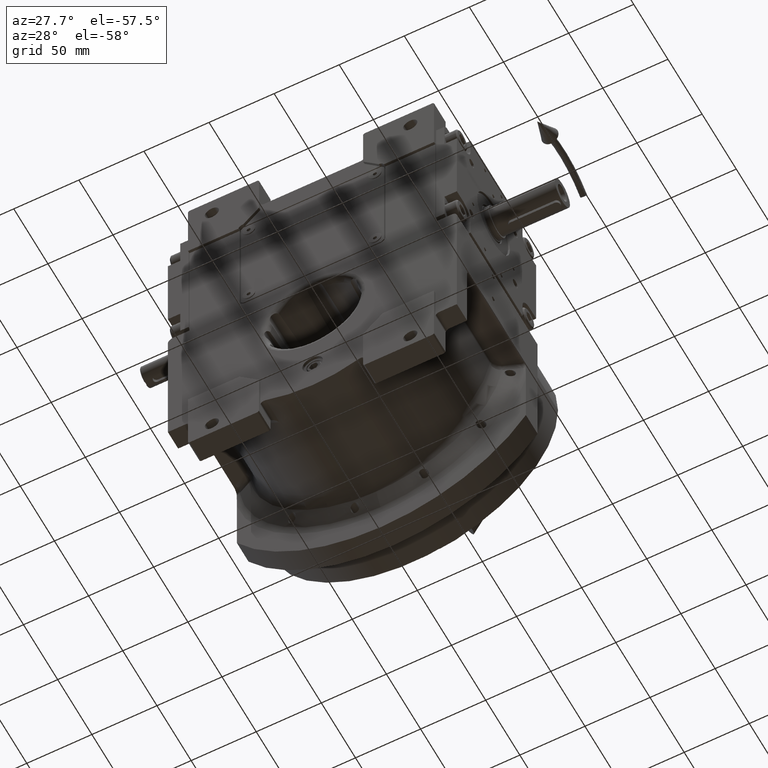
[diagram: clean part render]
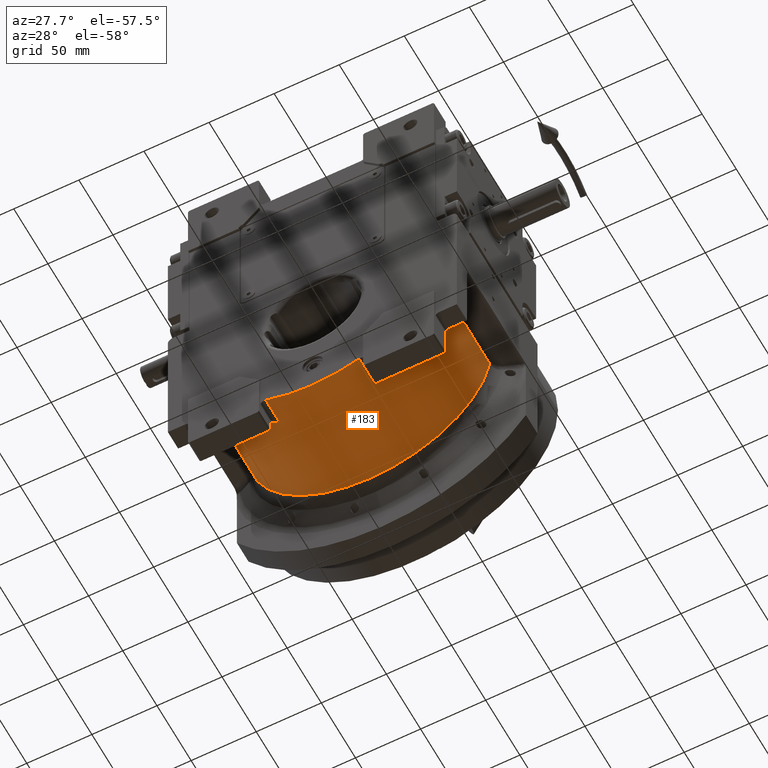
[diagram: same view with one face highlighted and labeled with its STEP entity id]
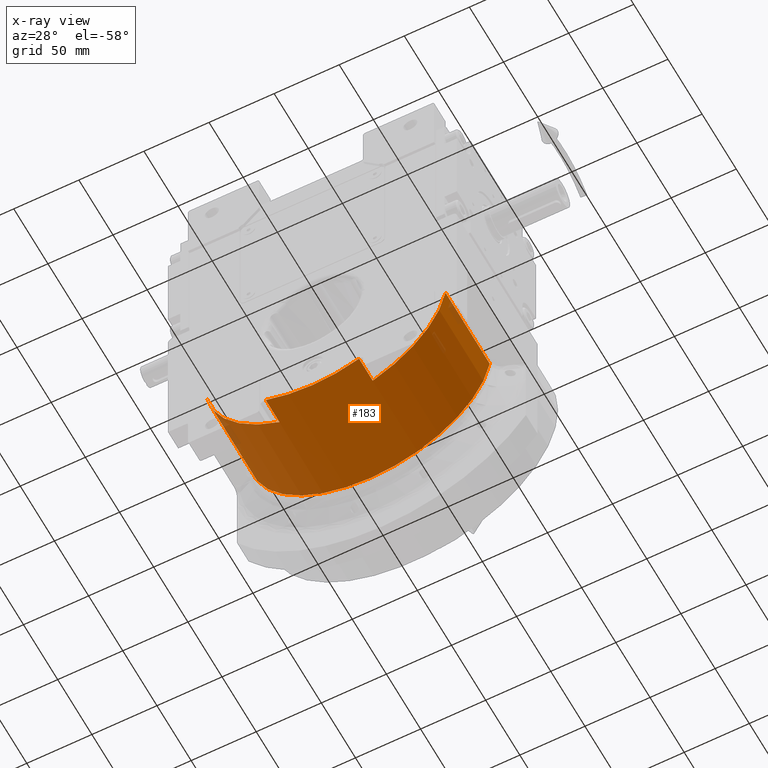
[diagram: x-ray of the same camera — body ghosted, the highlighted face saturated]
A machine part, auxiliary view. The second image highlights one B-rep face of the part: STEP entity #183.
The next image is the same camera in x-ray: the body ghosted, the highlighted face saturated — about 2% of this face is hidden behind the body in this view.
In plain terms, the highlighted cylindrical surface (partial cylindrical patch) has radius 93 mm, axis along (0, 1, 0).
Its self-contained STEP definition (entity closure, byte-faithful):
#183 = ADVANCED_FACE ( 'NONE', ( #51791 ), #46281, .T. ) ;
#628 = CARTESIAN_POINT ( 'NONE',  ( 35.84375000000000000, -33.50000000000000000, -85.81506619433150718 ) ) ;
#1427 = VERTEX_POINT ( 'NONE', #52475 ) ;
#1757 = DIRECTION ( 'NONE',  ( 0.000000000000000000, -1.000000000000000000, 0.000000000000000000 ) ) ;
#1987 = DIRECTION ( 'NONE',  ( 0.000000000000000000, 1.000000000000000000, 0.000000000000000000 ) ) ;
#6820 = CIRCLE ( 'NONE', #59556, 93.00000000000001421 ) ;
#6849 = EDGE_CURVE ( 'NONE', #1427, #15857, #44275, .T. ) ;
#7630 = EDGE_CURVE ( 'NONE', #16047, #15857, #8411, .T. ) ;
#7800 = EDGE_CURVE ( 'NONE', #60638, #31652, #14160, .T. ) ;
#8411 = CIRCLE ( 'NONE', #18272, 93.00000000000001421 ) ;
#8812 = DIRECTION ( 'NONE',  ( 0.000000000000000000, 1.000000000000000000, 0.000000000000000000 ) ) ;
#9805 = CIRCLE ( 'NONE', #50485, 92.99999999999995737 ) ;
#9979 = ORIENTED_EDGE ( 'NONE', *, *, #6849, .T. ) ;
#11594 = DIRECTION ( 'NONE',  ( 0.000000000000000000, 1.000000000000000000, 0.000000000000000000 ) ) ;
#12200 = CARTESIAN_POINT ( 'NONE',  ( 91.75016228501930016, 31.21878281274199907, -15.19564808333685058 ) ) ;
#12818 = DIRECTION ( 'NONE',  ( 0.9865608847851539132, -1.678764654171103455E-15, -0.1633940654122239822 ) ) ;
#13688 = CARTESIAN_POINT ( 'NONE',  ( -5.684341886080798963E-14, -33.50000000000000000, -4.973799150320699408E-14 ) ) ;
#13960 = VECTOR ( 'NONE', #20318, 1000.000000000000000 ) ;
#14160 = LINE ( 'NONE', #40642, #13960 ) ;
#14630 = CARTESIAN_POINT ( 'NONE',  ( -4.517455316885850268E-28, -53.50000000000000000, 0.000000000000000000 ) ) ;
#14855 = ORIENTED_EDGE ( 'NONE', *, *, #36795, .F. ) ;
#15857 = VERTEX_POINT ( 'NONE', #59863 ) ;
#16047 = VERTEX_POINT ( 'NONE', #27796 ) ;
#16224 = ORIENTED_EDGE ( 'NONE', *, *, #16225, .T. ) ;
#16225 = EDGE_CURVE ( 'NONE', #31652, #1427, #6820, .T. ) ;
#16584 = LINE ( 'NONE', #48241, #40509 ) ;
#16681 = DIRECTION ( 'NONE',  ( 0.000000000000000000, -1.000000000000000000, 0.000000000000000000 ) ) ;
#17079 = CARTESIAN_POINT ( 'NONE',  ( 1.421085471520200056E-14, -33.50000000000000000, 1.421085471520200056E-14 ) ) ;
#18272 = AXIS2_PLACEMENT_3D ( 'NONE', #60610, #28280, #12818 ) ;
#19123 = CARTESIAN_POINT ( 'NONE',  ( -91.75016228501930016, -33.50000000000000000, -15.19564808333695183 ) ) ;
#19557 = EDGE_CURVE ( 'NONE', #31017, #37949, #16584, .T. ) ;
#19686 = CARTESIAN_POINT ( 'NONE',  ( -35.84375000000000000, -33.50000000000000000, -85.81506619433150718 ) ) ;
#20009 = EDGE_LOOP ( 'NONE', ( #14855, #62457, #16224, #9979, #59768, #49106, #28063, #42730 ) ) ;
#20318 = DIRECTION ( 'NONE',  ( 1.776356839400250070E-15, 1.000000000000000000, -7.105427357601000281E-16 ) ) ;
#21572 = DIRECTION ( 'NONE',  ( 0.9865608847878558629, 0.000000000000000000, -0.1633940653959109757 ) ) ;
#23665 = DIRECTION ( 'NONE',  ( -0.3854166666666659080, 0.000000000000000000, -0.9227426472508768462 ) ) ;
#27080 = AXIS2_PLACEMENT_3D ( 'NONE', #14630, #36597, #35915 ) ;
#27796 = CARTESIAN_POINT ( 'NONE',  ( 91.75016228501930016, 31.21878281274259948, -15.19564808333685058 ) ) ;
#28063 = ORIENTED_EDGE ( 'NONE', *, *, #55935, .T. ) ;
#28217 = EDGE_CURVE ( 'NONE', #16047, #65138, #43497, .T. ) ;
#28280 = DIRECTION ( 'NONE',  ( 5.743225055535190204E-15, 1.000000000000000000, 2.439003765979129920E-14 ) ) ;
#31017 = VERTEX_POINT ( 'NONE', #628 ) ;
#31652 = VERTEX_POINT ( 'NONE', #19686 ) ;
#35915 = DIRECTION ( 'NONE',  ( 0.000000000000000000, 0.000000000000000000, 1.000000000000000000 ) ) ;
#36597 = DIRECTION ( 'NONE',  ( 0.000000000000000000, 1.000000000000000000, 0.000000000000000000 ) ) ;
#36795 = EDGE_CURVE ( 'NONE', #60638, #37949, #9805, .T. ) ;
#37949 = VERTEX_POINT ( 'NONE', #46416 ) ;
#40509 = VECTOR ( 'NONE', #1757, 1000.000000000000000 ) ;
#40642 = CARTESIAN_POINT ( 'NONE',  ( -35.84375000000000000, -53.50000000000000000, -85.81506619433150718 ) ) ;
#42730 = ORIENTED_EDGE ( 'NONE', *, *, #19557, .T. ) ;
#43497 = LINE ( 'NONE', #12200, #59911 ) ;
#43860 = CARTESIAN_POINT ( 'NONE',  ( 1.421085471520200056E-14, -53.50000000000000000, -4.263256414560599853E-14 ) ) ;
#44275 = LINE ( 'NONE', #19123, #56624 ) ;
#44885 = DIRECTION ( 'NONE',  ( 0.000000000000000000, -1.000000000000000000, 0.000000000000000000 ) ) ;
#46281 = CYLINDRICAL_SURFACE ( 'NONE', #27080, 93.00000000000000000 ) ;
#46416 = CARTESIAN_POINT ( 'NONE',  ( 35.84375000000000000, -53.50000000000000000, -85.81506619433150718 ) ) ;
#48241 = CARTESIAN_POINT ( 'NONE',  ( 35.84375000000000000, -33.50000000000000000, -85.81506619433150718 ) ) ;
#49106 = ORIENTED_EDGE ( 'NONE', *, *, #28217, .T. ) ;
#50485 = AXIS2_PLACEMENT_3D ( 'NONE', #43860, #44885, #65871 ) ;
#51791 = FACE_OUTER_BOUND ( 'NONE', #20009, .T. ) ;
#52475 = CARTESIAN_POINT ( 'NONE',  ( -91.75016228508779648, -33.50000000000000000, -15.19564808292360070 ) ) ;
#53392 = CARTESIAN_POINT ( 'NONE',  ( 91.75016228514499517, -33.50000000000000000, -15.19564808257825028 ) ) ;
#55935 = EDGE_CURVE ( 'NONE', #65138, #31017, #58894, .T. ) ;
#56624 = VECTOR ( 'NONE', #8812, 1000.000000000000000 ) ;
#58894 = CIRCLE ( 'NONE', #63277, 93.00000000000001421 ) ;
#59556 = AXIS2_PLACEMENT_3D ( 'NONE', #13688, #1987, #23665 ) ;
#59768 = ORIENTED_EDGE ( 'NONE', *, *, #7630, .F. ) ;
#59863 = CARTESIAN_POINT ( 'NONE',  ( -91.75030103113060420, 31.21878279875124917, -15.19503959111690072 ) ) ;
#59911 = VECTOR ( 'NONE', #16681, 1000.000000000000000 ) ;
#60610 = CARTESIAN_POINT ( 'NONE',  ( 1.421085471520200056E-14, 31.21878281274215183, 0.000000000000000000 ) ) ;
#60638 = VERTEX_POINT ( 'NONE', #61290 ) ;
#61290 = CARTESIAN_POINT ( 'NONE',  ( -35.84375000000000000, -53.50000000000000000, -85.81506619433150718 ) ) ;
#62457 = ORIENTED_EDGE ( 'NONE', *, *, #7800, .T. ) ;
#63277 = AXIS2_PLACEMENT_3D ( 'NONE', #17079, #11594, #21572 ) ;
#65138 = VERTEX_POINT ( 'NONE', #53392 ) ;
#65871 = DIRECTION ( 'NONE',  ( -0.3854166666666672403, 0.000000000000000000, -0.9227426472508764022 ) ) ;